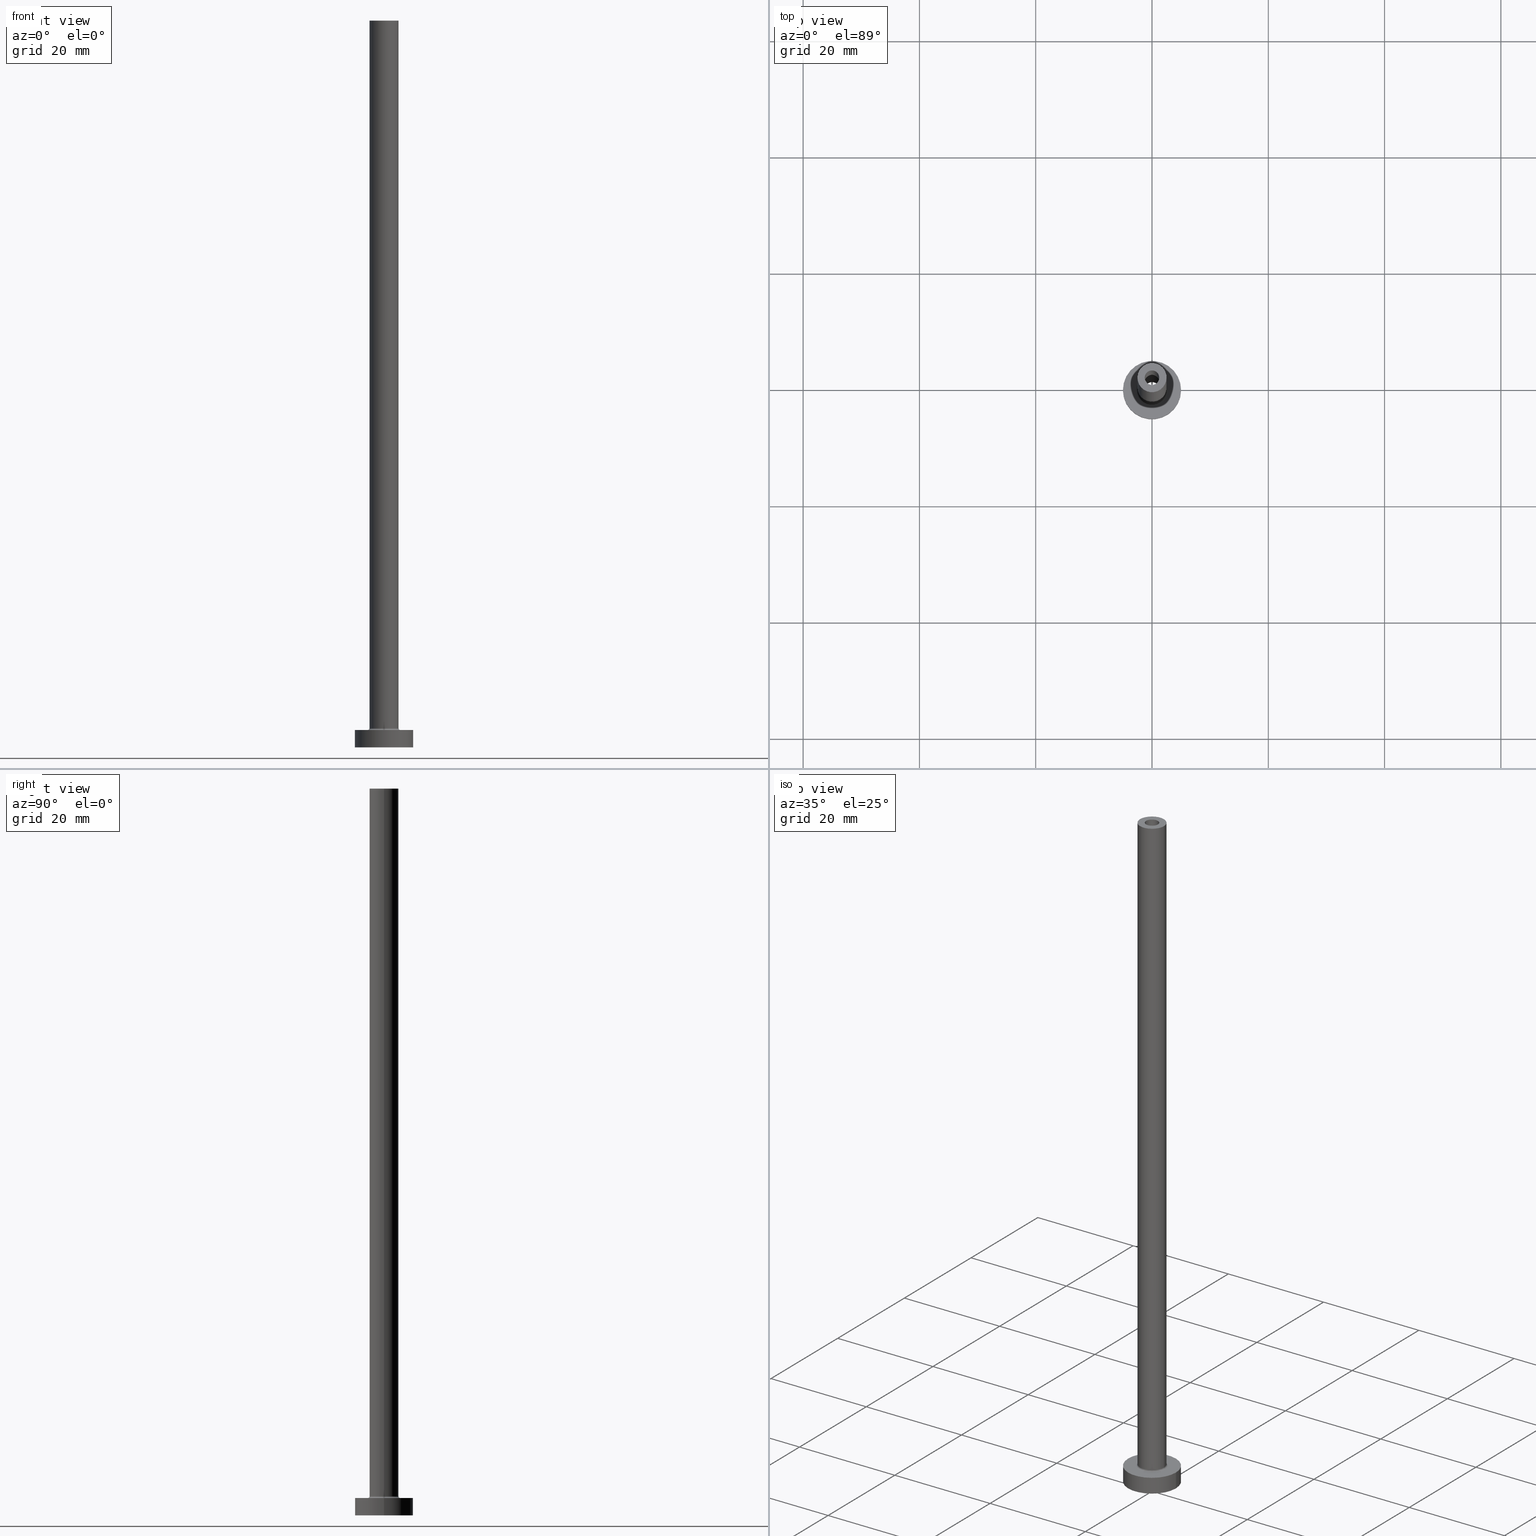
[diagram: canonical four-view strip — front | top / right | iso, engineering-drawing reading convention]
A machine part, canonical four-view strip (front | top / right | iso — engineering-drawing reading convention). The complete STEP part file that produces these views, byte-faithful:
ISO-10303-21;
HEADER;
FILE_DESCRIPTION (( 'STEP AP203' ),
    '1' );
FILE_NAME ('161c.STEP',
    '2023-02-13T12:48:53',
    ( '' ),
    ( '' ),
    'SwSTEP 2.0',
    'SolidWorks 2019',
    '' );
FILE_SCHEMA (( 'CONFIG_CONTROL_DESIGN' ));
ENDSEC;

DATA;
#1 = LINE ( 'NONE', #144, #115 ) ;
#2 = AXIS2_PLACEMENT_3D ( 'NONE', #163, #454, #384 ) ;
#3 = DIRECTION ( 'NONE',  ( -0.000000000000000000, -0.000000000000000000, -1.000000000000000000 ) ) ;
#4 = VERTEX_POINT ( 'NONE', #151 ) ;
#5 = FACE_OUTER_BOUND ( 'NONE', #342, .T. ) ;
#6 = EDGE_CURVE ( 'NONE', #406, #141, #446, .T. ) ;
#7 = EDGE_LOOP ( 'NONE', ( #230, #427 ) ) ;
#8 = DESIGN_CONTEXT ( 'detailed design', #412, 'design' ) ;
#9 = CARTESIAN_POINT ( 'NONE',  ( -1.250000000000000000, 0.000000000000000000, 125.0000000000000000 ) ) ;
#10 = VERTEX_POINT ( 'NONE', #332 ) ;
#11 = CARTESIAN_POINT ( 'NONE',  ( 0.000000000000000000, 0.000000000000000000, 93.95979797464465832 ) ) ;
#12 = PRODUCT_DEFINITION_FORMATION_WITH_SPECIFIED_SOURCE ( 'LIBOVOLN�', '', #228, .NOT_KNOWN. ) ;
#13 = EDGE_LOOP ( 'NONE', ( #50, #319, #366, #292 ) ) ;
#14 = AXIS2_PLACEMENT_3D ( 'NONE', #122, #261, #376 ) ;
#15 = DATE_TIME_ROLE ( 'creation_date' ) ;
#16 = ORIENTED_EDGE ( 'NONE', *, *, #36, .T. ) ;
#17 = ORIENTED_EDGE ( 'NONE', *, *, #123, .F. ) ;
#18 = APPROVAL_STATUS ( 'not_yet_approved' ) ;
#19 = CIRCLE ( 'NONE', #278, 2.799999999999999822 ) ;
#20 = ORIENTED_EDGE ( 'NONE', *, *, #334, .T. ) ;
#21 = DIRECTION ( 'NONE',  ( 1.000000000000000000, 0.000000000000000000, 0.000000000000000000 ) ) ;
#22 = EDGE_CURVE ( 'NONE', #268, #437, #196, .T. ) ;
#23 = PERSON_AND_ORGANIZATION ( #320, #240 ) ;
#24 = DIRECTION ( 'NONE',  ( 1.000000000000000000, 0.000000000000000000, 0.000000000000000000 ) ) ;
#25 = FACE_OUTER_BOUND ( 'NONE', #105, .T. ) ;
#26 = VECTOR ( 'NONE', #3, 1000.000000000000000 ) ;
#27 = EDGE_CURVE ( 'NONE', #378, #10, #158, .T. ) ;
#28 = AXIS2_PLACEMENT_3D ( 'NONE', #413, #92, #301 ) ;
#29 = CARTESIAN_POINT ( 'NONE',  ( -1.399999999999999911, 0.000000000000000000, 93.95979797464465832 ) ) ;
#30 = APPROVAL_ROLE ( '' ) ;
#31 = DIRECTION ( 'NONE',  ( 1.000000000000000000, 0.000000000000000000, 0.000000000000000000 ) ) ;
#32 = PLANE ( 'NONE',  #2 ) ;
#33 = AXIS2_PLACEMENT_3D ( 'NONE', #318, #243, #293 ) ;
#34 = DIRECTION ( 'NONE',  ( 1.224646799147353207E-16, 1.000000000000000000, -0.000000000000000000 ) ) ;
#35 = EDGE_LOOP ( 'NONE', ( #248, #209, #20, #83 ) ) ;
#36 = EDGE_CURVE ( 'NONE', #43, #326, #408, .T. ) ;
#37 = FACE_OUTER_BOUND ( 'NONE', #374, .T. ) ;
#38 = ORIENTED_EDGE ( 'NONE', *, *, #174, .F. ) ;
#39 = CARTESIAN_POINT ( 'NONE',  ( -1.250000000000000000, 0.000000000000000000, 125.0000000000000000 ) ) ;
#40 = ORIENTED_EDGE ( 'NONE', *, *, #361, .F. ) ;
#41 = EDGE_CURVE ( 'NONE', #139, #268, #224, .T. ) ;
#42 = DIRECTION ( 'NONE',  ( 1.000000000000000000, 0.000000000000000000, -0.000000000000000000 ) ) ;
#43 = VERTEX_POINT ( 'NONE', #160 ) ;
#44 = ADVANCED_BREP_SHAPE_REPRESENTATION ( '161c', ( #183, #295 ), #424 ) ;
#45 = CARTESIAN_POINT ( 'NONE',  ( 0.000000000000000000, 0.000000000000000000, 90.00000000000000000 ) ) ;
#46 = ORIENTED_EDGE ( 'NONE', *, *, #27, .F. ) ;
#47 = FACE_OUTER_BOUND ( 'NONE', #176, .T. ) ;
#48 = APPROVAL_DATE_TIME ( #56, #387 ) ;
#49 = LOCAL_TIME ( 13, 48, 53.00000000000000000, #124 ) ;
#50 = ORIENTED_EDGE ( 'NONE', *, *, #41, .F. ) ;
#51 = ADVANCED_FACE ( 'NONE', ( #308, #47 ), #127, .F. ) ;
#52 = APPLICATION_CONTEXT ( 'configuration controlled 3d designs of mechanical parts and assemblies' ) ;
#53 = VECTOR ( 'NONE', #200, 1000.000000000000000 ) ;
#54 = DIRECTION ( 'NONE',  ( 1.000000000000000000, 0.000000000000000000, 0.000000000000000000 ) ) ;
#55 = CARTESIAN_POINT ( 'NONE',  ( 0.000000000000000000, 0.000000000000000000, 125.0000000000000000 ) ) ;
#56 = DATE_AND_TIME ( #442, #49 ) ;
#57 = VERTEX_POINT ( 'NONE', #119 ) ;
#58 = ADVANCED_FACE ( 'NONE', ( #85 ), #255, .F. ) ;
#59 = DIRECTION ( 'NONE',  ( 0.000000000000000000, 0.000000000000000000, 1.000000000000000000 ) ) ;
#60 = AXIS2_PLACEMENT_3D ( 'NONE', #167, #242, #388 ) ;
#61 = ORIENTED_EDGE ( 'NONE', *, *, #289, .F. ) ;
#62 = SECURITY_CLASSIFICATION ( '', '', #417 ) ;
#63 = DIRECTION ( 'NONE',  ( 0.000000000000000000, 0.000000000000000000, 1.000000000000000000 ) ) ;
#64 = DIRECTION ( 'NONE',  ( 1.000000000000000000, 0.000000000000000000, 0.000000000000000000 ) ) ;
#65 = DIRECTION ( 'NONE',  ( 1.000000000000000000, 0.000000000000000000, 0.000000000000000000 ) ) ;
#66 = VECTOR ( 'NONE', #164, 1000.000000000000000 ) ;
#67 = LOCAL_TIME ( 13, 48, 53.00000000000000000, #341 ) ;
#68 = CARTESIAN_POINT ( 'NONE',  ( -5.000000000000000000, 0.000000000000000000, 3.000000000000000000 ) ) ;
#69 = DIRECTION ( 'NONE',  ( -0.000000000000000000, -0.000000000000000000, -1.000000000000000000 ) ) ;
#70 = CC_DESIGN_PERSON_AND_ORGANIZATION_ASSIGNMENT ( #165, #449, ( #12 ) ) ;
#71 = CARTESIAN_POINT ( 'NONE',  ( 0.000000000000000000, 0.000000000000000000, 125.0000000000000000 ) ) ;
#72 = VECTOR ( 'NONE', #460, 1000.000000000000000 ) ;
#73 = CARTESIAN_POINT ( 'NONE',  ( -5.000000000000000000, 0.000000000000000000, 3.000000000000000000 ) ) ;
#74 = CIRCLE ( 'NONE', #335, 1.399999999999999911 ) ;
#75 = ORIENTED_EDGE ( 'NONE', *, *, #27, .T. ) ;
#76 = DIRECTION ( 'NONE',  ( 1.000000000000000000, 0.000000000000000000, 0.000000000000000000 ) ) ;
#77 = EDGE_CURVE ( 'NONE', #250, #57, #386, .T. ) ;
#78 = CARTESIAN_POINT ( 'NONE',  ( 1.399999999999999911, 1.714505518806294145E-16, 0.000000000000000000 ) ) ;
#79 = ORIENTED_EDGE ( 'NONE', *, *, #383, .F. ) ;
#80 = APPROVAL_PERSON_ORGANIZATION ( #100, #198, #30 ) ;
#81 = FACE_OUTER_BOUND ( 'NONE', #35, .T. ) ;
#82 = ORIENTED_EDGE ( 'NONE', *, *, #204, .T. ) ;
#83 = ORIENTED_EDGE ( 'NONE', *, *, #289, .T. ) ;
#84 = PERSON_AND_ORGANIZATION_ROLE ( 'design_owner' ) ;
#85 = FACE_OUTER_BOUND ( 'NONE', #114, .T. ) ;
#86 = EDGE_LOOP ( 'NONE', ( #110, #394 ) ) ;
#87 = AXIS2_PLACEMENT_3D ( 'NONE', #149, #440, #303 ) ;
#88 = FACE_OUTER_BOUND ( 'NONE', #360, .T. ) ;
#89 = CARTESIAN_POINT ( 'NONE',  ( 0.000000000000000000, 0.000000000000000000, 3.299999999999997158 ) ) ;
#90 = CC_DESIGN_PERSON_AND_ORGANIZATION_ASSIGNMENT ( #443, #84, ( #228 ) ) ;
#91 = PERSON_AND_ORGANIZATION ( #320, #240 ) ;
#92 = DIRECTION ( 'NONE',  ( 0.000000000000000000, 0.000000000000000000, 1.000000000000000000 ) ) ;
#93 = EDGE_LOOP ( 'NONE', ( #173, #339, #284, #137 ) ) ;
#94 = FACE_OUTER_BOUND ( 'NONE', #93, .T. ) ;
#95 = PRODUCT_DEFINITION_SHAPE ( 'NONE', 'NONE',  #369 ) ;
#96 = DIRECTION ( 'NONE',  ( 0.000000000000000000, 0.000000000000000000, 1.000000000000000000 ) ) ;
#97 = COORDINATED_UNIVERSAL_TIME_OFFSET ( 1, 0, .AHEAD. ) ;
#98 = DIRECTION ( 'NONE',  ( -1.000000000000000000, 0.000000000000000000, 0.000000000000000000 ) ) ;
#99 = CIRCLE ( 'NONE', #214, 5.000000000000000000 ) ;
#100 = PERSON_AND_ORGANIZATION ( #320, #240 ) ;
#101 = FACE_BOUND ( 'NONE', #363, .T. ) ;
#102 = EDGE_CURVE ( 'NONE', #4, #290, #351, .T. ) ;
#103 = FACE_OUTER_BOUND ( 'NONE', #213, .T. ) ;
#104 = DIRECTION ( 'NONE',  ( 0.000000000000000000, 0.000000000000000000, 1.000000000000000000 ) ) ;
#105 = EDGE_LOOP ( 'NONE', ( #253, #225 ) ) ;
#106 = AXIS2_PLACEMENT_3D ( 'NONE', #459, #69, #276 ) ;
#107 = APPROVAL_PERSON_ORGANIZATION ( #409, #387, #371 ) ;
#108 = DIRECTION ( 'NONE',  ( -1.000000000000000000, 0.000000000000000000, 0.000000000000000000 ) ) ;
#109 = EDGE_CURVE ( 'NONE', #326, #43, #74, .T. ) ;
#110 = ORIENTED_EDGE ( 'NONE', *, *, #36, .F. ) ;
#111 = LINE ( 'NONE', #73, #26 ) ;
#112 = EDGE_LOOP ( 'NONE', ( #171, #432 ) ) ;
#113 = CARTESIAN_POINT ( 'NONE',  ( 0.000000000000000000, 0.000000000000000000, 3.299999999999997158 ) ) ;
#114 = EDGE_LOOP ( 'NONE', ( #305, #392, #145, #125 ) ) ;
#115 = VECTOR ( 'NONE', #249, 1000.000000000000000 ) ;
#116 = DIRECTION ( 'NONE',  ( -1.000000000000000000, 0.000000000000000000, 0.000000000000000000 ) ) ;
#117 = EDGE_LOOP ( 'NONE', ( #40, #82, #322, #219 ) ) ;
#118 = PRODUCT_RELATED_PRODUCT_CATEGORY ( 'detail', '', ( #228 ) ) ;
#119 = CARTESIAN_POINT ( 'NONE',  ( 5.000000000000000000, 6.123233995736766282E-16, 3.000000000000000000 ) ) ;
#120 = COORDINATED_UNIVERSAL_TIME_OFFSET ( 1, 0, .AHEAD. ) ;
#121 = DIRECTION ( 'NONE',  ( -0.000000000000000000, -0.000000000000000000, -1.000000000000000000 ) ) ;
#122 = CARTESIAN_POINT ( 'NONE',  ( 0.000000000000000000, 0.000000000000000000, 125.0000000000000000 ) ) ;
#123 = EDGE_CURVE ( 'NONE', #430, #326, #355, .T. ) ;
#124 = COORDINATED_UNIVERSAL_TIME_OFFSET ( 1, 0, .AHEAD. ) ;
#125 = ORIENTED_EDGE ( 'NONE', *, *, #435, .F. ) ;
#126 = PERSON_AND_ORGANIZATION_ROLE ( 'classification_officer' ) ;
#127 = PLANE ( 'NONE',  #28 ) ;
#128 = AXIS2_PLACEMENT_3D ( 'NONE', #190, #404, #159 ) ;
#129 = CARTESIAN_POINT ( 'NONE',  ( -1.399999999999999911, 0.000000000000000000, 90.00000000000000000 ) ) ;
#130 = DIRECTION ( 'NONE',  ( 0.000000000000000000, 0.000000000000000000, 1.000000000000000000 ) ) ;
#131 = CARTESIAN_POINT ( 'NONE',  ( -2.799999999999999822, 3.429011037612589276E-16, 2.999999999999998668 ) ) ;
#132 = PERSON_AND_ORGANIZATION ( #320, #240 ) ;
#133 = DIRECTION ( 'NONE',  ( 1.000000000000000000, 0.000000000000000000, 0.000000000000000000 ) ) ;
#134 = ADVANCED_FACE ( 'NONE', ( #311 ), #197, .T. ) ;
#135 = FACE_BOUND ( 'NONE', #7, .T. ) ;
#136 = CARTESIAN_POINT ( 'NONE',  ( 5.000000000000000000, 6.123233995736766282E-16, 3.000000000000000000 ) ) ;
#137 = ORIENTED_EDGE ( 'NONE', *, *, #231, .F. ) ;
#138 = CARTESIAN_POINT ( 'NONE',  ( 0.000000000000000000, 0.000000000000000000, 0.000000000000000000 ) ) ;
#139 = VERTEX_POINT ( 'NONE', #346 ) ;
#140 = DIRECTION ( 'NONE',  ( 0.000000000000000000, 0.000000000000000000, -1.000000000000000000 ) ) ;
#141 = VERTEX_POINT ( 'NONE', #131 ) ;
#142 = CARTESIAN_POINT ( 'NONE',  ( 2.799999999999999822, 0.000000000000000000, 2.999999999999998668 ) ) ;
#143 = EDGE_LOOP ( 'NONE', ( #434, #445, #402, #297 ) ) ;
#144 = CARTESIAN_POINT ( 'NONE',  ( 2.500000000000000000, 3.061616997868382648E-16, 125.0000000000000000 ) ) ;
#145 = ORIENTED_EDGE ( 'NONE', *, *, #267, .T. ) ;
#146 = CC_DESIGN_PERSON_AND_ORGANIZATION_ASSIGNMENT ( #132, #307, ( #12 ) ) ;
#147 = CIRCLE ( 'NONE', #310, 2.500000000000000000 ) ;
#148 = MECHANICAL_CONTEXT ( 'NONE', #52, 'mechanical' ) ;
#149 = CARTESIAN_POINT ( 'NONE',  ( 0.000000000000000000, 0.000000000000000000, 0.000000000000000000 ) ) ;
#150 = CYLINDRICAL_SURFACE ( 'NONE', #458, 1.399999999999999911 ) ;
#151 = CARTESIAN_POINT ( 'NONE',  ( 1.250000000000000000, 1.530808498934191571E-16, 90.00000000000000000 ) ) ;
#152 = ADVANCED_FACE ( 'NONE', ( #94 ), #161, .F. ) ;
#153 = DIRECTION ( 'NONE',  ( -1.000000000000000000, 0.000000000000000000, 0.000000000000000000 ) ) ;
#154 = CARTESIAN_POINT ( 'NONE',  ( -2.500000000000000000, 0.000000000000000000, 125.0000000000000000 ) ) ;
#155 = DIRECTION ( 'NONE',  ( 1.000000000000000000, 0.000000000000000000, 0.000000000000000000 ) ) ;
#156 = CC_DESIGN_APPROVAL ( #198, ( #62 ) ) ;
#157 = VERTEX_POINT ( 'NONE', #129 ) ;
#158 = CIRCLE ( 'NONE', #280, 1.250000000000000000 ) ;
#159 = DIRECTION ( 'NONE',  ( 1.000000000000000000, 0.000000000000000000, 0.000000000000000000 ) ) ;
#160 = CARTESIAN_POINT ( 'NONE',  ( -1.399999999999999911, 0.000000000000000000, 0.000000000000000000 ) ) ;
#161 = CYLINDRICAL_SURFACE ( 'NONE', #390, 1.399999999999999911 ) ;
#162 = CIRCLE ( 'NONE', #428, 1.250000000000000000 ) ;
#163 = CARTESIAN_POINT ( 'NONE',  ( 0.000000000000000000, 0.000000000000000000, 125.0000000000000000 ) ) ;
#164 = DIRECTION ( 'NONE',  ( 0.000000000000000000, 0.000000000000000000, -1.000000000000000000 ) ) ;
#165 = PERSON_AND_ORGANIZATION ( #320, #240 ) ;
#166 = EDGE_CURVE ( 'NONE', #461, #437, #244, .T. ) ;
#167 = CARTESIAN_POINT ( 'NONE',  ( 2.799999999999999822, 0.000000000000000000, 3.299999999999997158 ) ) ;
#168 = CARTESIAN_POINT ( 'NONE',  ( 0.000000000000000000, 0.000000000000000000, 3.000000000000000000 ) ) ;
#169 = AXIS2_PLACEMENT_3D ( 'NONE', #272, #348, #65 ) ;
#170 = CARTESIAN_POINT ( 'NONE',  ( 0.000000000000000000, 0.000000000000000000, 3.000000000000000000 ) ) ;
#171 = ORIENTED_EDGE ( 'NONE', *, *, #299, .T. ) ;
#172 = FACE_OUTER_BOUND ( 'NONE', #117, .T. ) ;
#173 = ORIENTED_EDGE ( 'NONE', *, *, #383, .T. ) ;
#174 = EDGE_CURVE ( 'NONE', #430, #157, #343, .T. ) ;
#175 = DIRECTION ( 'NONE',  ( 1.000000000000000000, 0.000000000000000000, 0.000000000000000000 ) ) ;
#176 = EDGE_LOOP ( 'NONE', ( #79, #38 ) ) ;
#177 = CIRCLE ( 'NONE', #325, 1.250000000000000000 ) ;
#178 = VECTOR ( 'NONE', #259, 1000.000000000000000 ) ;
#179 = DIRECTION ( 'NONE',  ( -1.000000000000000000, 0.000000000000000000, 0.000000000000000000 ) ) ;
#180 = DIRECTION ( 'NONE',  ( -1.000000000000000000, 0.000000000000000000, 0.000000000000000000 ) ) ;
#181 = ADVANCED_FACE ( 'NONE', ( #101, #25 ), #32, .T. ) ;
#182 = ORIENTED_EDGE ( 'NONE', *, *, #189, .T. ) ;
#183 = MANIFOLD_SOLID_BREP ( 'Odebrat vysunut�m4', #296 ) ;
#184 = ORIENTED_EDGE ( 'NONE', *, *, #6, .F. ) ;
#185 = LOCAL_TIME ( 13, 48, 53.00000000000000000, #380 ) ;
#186 = CALENDAR_DATE ( 2023, 13, 2 ) ;
#187 = ORIENTED_EDGE ( 'NONE', *, *, #422, .F. ) ;
#188 = AXIS2_PLACEMENT_3D ( 'NONE', #381, #63, #425 ) ;
#189 = EDGE_CURVE ( 'NONE', #57, #250, #222, .T. ) ;
#190 = CARTESIAN_POINT ( 'NONE',  ( 0.000000000000000000, 0.000000000000000000, 125.0000000000000000 ) ) ;
#191 = ORIENTED_EDGE ( 'NONE', *, *, #306, .T. ) ;
#192 = PERSON_AND_ORGANIZATION ( #320, #240 ) ;
#193 = CARTESIAN_POINT ( 'NONE',  ( 0.000000000000000000, 0.000000000000000000, 3.000000000000000000 ) ) ;
#194 = CIRCLE ( 'NONE', #128, 2.500000000000000000 ) ;
#195 = CARTESIAN_POINT ( 'NONE',  ( 2.500000000000000000, 3.061616997868382648E-16, 3.299999999999997158 ) ) ;
#196 = LINE ( 'NONE', #154, #178 ) ;
#197 = CYLINDRICAL_SURFACE ( 'NONE', #262, 5.000000000000000000 ) ;
#198 = APPROVAL ( #277, 'NEUR�EN�' ) ;
#199 = APPROVAL_DATE_TIME ( #314, #198 ) ;
#200 = DIRECTION ( 'NONE',  ( 0.000000000000000000, 0.000000000000000000, -1.000000000000000000 ) ) ;
#201 = VECTOR ( 'NONE', #429, 1000.000000000000000 ) ;
#202 = DIRECTION ( 'NONE',  ( -0.000000000000000000, -0.000000000000000000, -1.000000000000000000 ) ) ;
#203 = AXIS2_PLACEMENT_3D ( 'NONE', #264, #96, #64 ) ;
#204 = EDGE_CURVE ( 'NONE', #10, #378, #177, .T. ) ;
#205 = CARTESIAN_POINT ( 'NONE',  ( 0.000000000000000000, 0.000000000000000000, 3.299999999999997158 ) ) ;
#206 = CARTESIAN_POINT ( 'NONE',  ( -2.500000000000000000, 0.000000000000000000, 125.0000000000000000 ) ) ;
#207 = DIRECTION ( 'NONE',  ( 0.000000000000000000, 0.000000000000000000, 1.000000000000000000 ) ) ;
#208 = PLANE ( 'NONE',  #333 ) ;
#209 = ORIENTED_EDGE ( 'NONE', *, *, #77, .F. ) ;
#210 = CC_DESIGN_DATE_AND_TIME_ASSIGNMENT ( #352, #347, ( #62 ) ) ;
#211 = CARTESIAN_POINT ( 'NONE',  ( 1.250000000000000000, 1.530808498934191571E-16, 125.0000000000000000 ) ) ;
#212 = CARTESIAN_POINT ( 'NONE',  ( 0.000000000000000000, 0.000000000000000000, 125.0000000000000000 ) ) ;
#213 = EDGE_LOOP ( 'NONE', ( #257, #294, #184, #370 ) ) ;
#214 = AXIS2_PLACEMENT_3D ( 'NONE', #263, #59, #155 ) ;
#215 = CC_DESIGN_APPROVAL ( #387, ( #369 ) ) ;
#216 = CC_DESIGN_PERSON_AND_ORGANIZATION_ASSIGNMENT ( #192, #300, ( #369 ) ) ;
#217 = PLANE ( 'NONE',  #33 ) ;
#218 = DIRECTION ( 'NONE',  ( 0.000000000000000000, 0.000000000000000000, -1.000000000000000000 ) ) ;
#219 = ORIENTED_EDGE ( 'NONE', *, *, #102, .F. ) ;
#220 = APPLICATION_PROTOCOL_DEFINITION ( 'international standard', 'config_control_design', 1994, #412 ) ;
#221 = VERTEX_POINT ( 'NONE', #236 ) ;
#222 = CIRCLE ( 'NONE', #436, 5.000000000000000000 ) ;
#223 = CARTESIAN_POINT ( 'NONE',  ( 0.000000000000000000, 0.000000000000000000, 0.000000000000000000 ) ) ;
#224 = CIRCLE ( 'NONE', #14, 2.500000000000000000 ) ;
#225 = ORIENTED_EDGE ( 'NONE', *, *, #41, .T. ) ;
#226 = APPROVAL_STATUS ( 'not_yet_approved' ) ;
#227 = DIRECTION ( 'NONE',  ( 0.000000000000000000, 0.000000000000000000, 1.000000000000000000 ) ) ;
#228 = PRODUCT ( '161c', '161c', '', ( #148 ) ) ;
#229 = CARTESIAN_POINT ( 'NONE',  ( 1.399999999999999911, 1.714505518806294145E-16, 90.00000000000000000 ) ) ;
#230 = ORIENTED_EDGE ( 'NONE', *, *, #6, .T. ) ;
#231 = EDGE_CURVE ( 'NONE', #157, #43, #233, .T. ) ;
#232 = LOCAL_TIME ( 13, 48, 53.00000000000000000, #120 ) ;
#233 = LINE ( 'NONE', #29, #66 ) ;
#234 = CALENDAR_DATE ( 2023, 13, 2 ) ;
#235 = CARTESIAN_POINT ( 'NONE',  ( 1.399999999999999911, 1.714505518806294145E-16, 93.95979797464465832 ) ) ;
#236 = CARTESIAN_POINT ( 'NONE',  ( -5.000000000000000000, 0.000000000000000000, 0.000000000000000000 ) ) ;
#237 = ADVANCED_FACE ( 'NONE', ( #313 ), #456, .T. ) ;
#238 = SHAPE_DEFINITION_REPRESENTATION ( #95, #44 ) ;
#239 = AXIS2_PLACEMENT_3D ( 'NONE', #45, #431, #396 ) ;
#240 = ORGANIZATION ( 'NEUR�EN�', 'NEUR�EN�', '' ) ;
#241 = CARTESIAN_POINT ( 'NONE',  ( 0.000000000000000000, 0.000000000000000000, 125.0000000000000000 ) ) ;
#242 = DIRECTION ( 'NONE',  ( 0.000000000000000000, -1.000000000000000000, 0.000000000000000000 ) ) ;
#243 = DIRECTION ( 'NONE',  ( 0.000000000000000000, 0.000000000000000000, 1.000000000000000000 ) ) ;
#244 = CIRCLE ( 'NONE', #169, 2.500000000000000000 ) ;
#245 = LOCAL_TIME ( 13, 48, 53.00000000000000000, #97 ) ;
#246 = VERTEX_POINT ( 'NONE', #385 ) ;
#247 = LINE ( 'NONE', #211, #201 ) ;
#248 = ORIENTED_EDGE ( 'NONE', *, *, #306, .F. ) ;
#249 = DIRECTION ( 'NONE',  ( -0.000000000000000000, -0.000000000000000000, -1.000000000000000000 ) ) ;
#250 = VERTEX_POINT ( 'NONE', #68 ) ;
#251 = EDGE_CURVE ( 'NONE', #437, #461, #147, .T. ) ;
#252 = CARTESIAN_POINT ( 'NONE',  ( 0.000000000000000000, 0.000000000000000000, 90.00000000000000000 ) ) ;
#253 = ORIENTED_EDGE ( 'NONE', *, *, #455, .T. ) ;
#254 = CIRCLE ( 'NONE', #60, 0.2999999999999999334 ) ;
#255 = TOROIDAL_SURFACE ( 'NONE', #438, 2.799999999999999822, 0.2999999999999999889 ) ;
#256 = DIRECTION ( 'NONE',  ( 0.000000000000000000, 0.000000000000000000, 1.000000000000000000 ) ) ;
#257 = ORIENTED_EDGE ( 'NONE', *, *, #251, .F. ) ;
#258 =( NAMED_UNIT ( * ) PLANE_ANGLE_UNIT ( ) SI_UNIT ( $, .RADIAN. ) );
#259 = DIRECTION ( 'NONE',  ( -0.000000000000000000, -0.000000000000000000, -1.000000000000000000 ) ) ;
#260 = DIRECTION ( 'NONE',  ( 0.000000000000000000, 0.000000000000000000, -1.000000000000000000 ) ) ;
#261 = DIRECTION ( 'NONE',  ( 0.000000000000000000, 0.000000000000000000, 1.000000000000000000 ) ) ;
#262 = AXIS2_PLACEMENT_3D ( 'NONE', #168, #275, #421 ) ;
#263 = CARTESIAN_POINT ( 'NONE',  ( 0.000000000000000000, 0.000000000000000000, 0.000000000000000000 ) ) ;
#264 = CARTESIAN_POINT ( 'NONE',  ( 0.000000000000000000, 0.000000000000000000, 3.000000000000000000 ) ) ;
#265 = CALENDAR_DATE ( 2023, 13, 2 ) ;
#266 = ORIENTED_EDGE ( 'NONE', *, *, #231, .T. ) ;
#267 = EDGE_CURVE ( 'NONE', #461, #406, #254, .T. ) ;
#268 = VERTEX_POINT ( 'NONE', #206 ) ;
#269 = AXIS2_PLACEMENT_3D ( 'NONE', #138, #288, #175 ) ;
#270 = APPROVAL_DATE_TIME ( #420, #282 ) ;
#271 = APPROVAL_PERSON_ORGANIZATION ( #91, #282, #447 ) ;
#272 = CARTESIAN_POINT ( 'NONE',  ( 0.000000000000000000, 0.000000000000000000, 3.299999999999997158 ) ) ;
#273 = CALENDAR_DATE ( 2023, 13, 2 ) ;
#274 = ADVANCED_FACE ( 'NONE', ( #135, #281 ), #217, .T. ) ;
#275 = DIRECTION ( 'NONE',  ( -0.000000000000000000, -0.000000000000000000, -1.000000000000000000 ) ) ;
#276 = DIRECTION ( 'NONE',  ( -1.000000000000000000, 0.000000000000000000, 0.000000000000000000 ) ) ;
#277 = APPROVAL_STATUS ( 'not_yet_approved' ) ;
#278 = AXIS2_PLACEMENT_3D ( 'NONE', #377, #302, #54 ) ;
#279 = DIRECTION ( 'NONE',  ( 1.000000000000000000, 0.000000000000000000, 0.000000000000000000 ) ) ;
#280 = AXIS2_PLACEMENT_3D ( 'NONE', #55, #450, #21 ) ;
#281 = FACE_OUTER_BOUND ( 'NONE', #330, .T. ) ;
#282 = APPROVAL ( #18, 'NEUR�EN�' ) ;
#283 = DIRECTION ( 'NONE',  ( -0.000000000000000000, -0.000000000000000000, -1.000000000000000000 ) ) ;
#284 = ORIENTED_EDGE ( 'NONE', *, *, #109, .T. ) ;
#285 = DIRECTION ( 'NONE',  ( 0.000000000000000000, 0.000000000000000000, 1.000000000000000000 ) ) ;
#286 = VECTOR ( 'NONE', #140, 1000.000000000000000 ) ;
#287 = ORIENTED_EDGE ( 'NONE', *, *, #375, .F. ) ;
#288 = DIRECTION ( 'NONE',  ( 0.000000000000000000, 0.000000000000000000, 1.000000000000000000 ) ) ;
#289 = EDGE_CURVE ( 'NONE', #221, #246, #415, .T. ) ;
#290 = VERTEX_POINT ( 'NONE', #391 ) ;
#291 = CYLINDRICAL_SURFACE ( 'NONE', #423, 1.250000000000000000 ) ;
#292 = ORIENTED_EDGE ( 'NONE', *, *, #22, .F. ) ;
#293 = DIRECTION ( 'NONE',  ( 1.000000000000000000, 0.000000000000000000, -0.000000000000000000 ) ) ;
#294 = ORIENTED_EDGE ( 'NONE', *, *, #401, .T. ) ;
#295 = AXIS2_PLACEMENT_3D ( 'NONE', #223, #256, #411 ) ;
#296 = CLOSED_SHELL ( 'NONE', ( #416, #152, #312, #323, #134, #407, #274, #354, #237, #181, #58, #441, #51, #395 ) ) ;
#297 = ORIENTED_EDGE ( 'NONE', *, *, #251, .T. ) ;
#298 = UNCERTAINTY_MEASURE_WITH_UNIT (LENGTH_MEASURE( 1.000000000000000082E-05 ), #338, 'distance_accuracy_value', 'NONE');
#299 = EDGE_CURVE ( 'NONE', #290, #4, #162, .T. ) ;
#300 = PERSON_AND_ORGANIZATION_ROLE ( 'creator' ) ;
#301 = DIRECTION ( 'NONE',  ( 1.000000000000000000, 0.000000000000000000, -0.000000000000000000 ) ) ;
#302 = DIRECTION ( 'NONE',  ( -0.000000000000000000, -0.000000000000000000, -1.000000000000000000 ) ) ;
#303 = DIRECTION ( 'NONE',  ( 1.000000000000000000, 0.000000000000000000, 0.000000000000000000 ) ) ;
#304 = AXIS2_PLACEMENT_3D ( 'NONE', #170, #327, #180 ) ;
#305 = ORIENTED_EDGE ( 'NONE', *, *, #401, .F. ) ;
#306 = EDGE_CURVE ( 'NONE', #57, #246, #321, .T. ) ;
#307 = PERSON_AND_ORGANIZATION_ROLE ( 'creator' ) ;
#308 = FACE_BOUND ( 'NONE', #112, .T. ) ;
#309 = CARTESIAN_POINT ( 'NONE',  ( 0.000000000000000000, 0.000000000000000000, 93.95979797464465832 ) ) ;
#310 = AXIS2_PLACEMENT_3D ( 'NONE', #205, #353, #31 ) ;
#311 = FACE_OUTER_BOUND ( 'NONE', #400, .T. ) ;
#312 = ADVANCED_FACE ( 'NONE', ( #103 ), #379, .F. ) ;
#313 = FACE_OUTER_BOUND ( 'NONE', #143, .T. ) ;
#314 = DATE_AND_TIME ( #234, #245 ) ;
#315 = CARTESIAN_POINT ( 'NONE',  ( 0.000000000000000000, 0.000000000000000000, 0.000000000000000000 ) ) ;
#316 = DIRECTION ( 'NONE',  ( 0.000000000000000000, 0.000000000000000000, 1.000000000000000000 ) ) ;
#317 = CC_DESIGN_DATE_AND_TIME_ASSIGNMENT ( #336, #15, ( #369 ) ) ;
#318 = CARTESIAN_POINT ( 'NONE',  ( 0.000000000000000000, 0.000000000000000000, 3.000000000000000000 ) ) ;
#319 = ORIENTED_EDGE ( 'NONE', *, *, #340, .T. ) ;
#320 = PERSON ( 'NEUR�EN�', 'NEUR�EN�', 'NEUR�EN�', ('NEUR�EN�'), ('NEUR�EN�'), ('NEUR�EN�') ) ;
#321 = LINE ( 'NONE', #136, #72 ) ;
#322 = ORIENTED_EDGE ( 'NONE', *, *, #375, .T. ) ;
#323 = ADVANCED_FACE ( 'NONE', ( #324 ), #357, .T. ) ;
#324 = FACE_OUTER_BOUND ( 'NONE', #13, .T. ) ;
#325 = AXIS2_PLACEMENT_3D ( 'NONE', #241, #316, #133 ) ;
#326 = VERTEX_POINT ( 'NONE', #78 ) ;
#327 = DIRECTION ( 'NONE',  ( -0.000000000000000000, -0.000000000000000000, -1.000000000000000000 ) ) ;
#328 = ORIENTED_EDGE ( 'NONE', *, *, #422, .T. ) ;
#329 = CARTESIAN_POINT ( 'NONE',  ( 0.000000000000000000, 0.000000000000000000, 125.0000000000000000 ) ) ;
#330 = EDGE_LOOP ( 'NONE', ( #373, #182 ) ) ;
#331 = APPLICATION_PROTOCOL_DEFINITION ( 'international standard', 'config_control_design', 1994, #52 ) ;
#332 = CARTESIAN_POINT ( 'NONE',  ( 1.250000000000000000, 1.530808498934191571E-16, 125.0000000000000000 ) ) ;
#333 = AXIS2_PLACEMENT_3D ( 'NONE', #393, #207, #42 ) ;
#334 = EDGE_CURVE ( 'NONE', #250, #221, #111, .T. ) ;
#335 = AXIS2_PLACEMENT_3D ( 'NONE', #315, #202, #24 ) ;
#336 = DATE_AND_TIME ( #186, #67 ) ;
#337 = ORIENTED_EDGE ( 'NONE', *, *, #174, .T. ) ;
#338 =( LENGTH_UNIT ( ) NAMED_UNIT ( * ) SI_UNIT ( .MILLI., .METRE. ) );
#339 = ORIENTED_EDGE ( 'NONE', *, *, #123, .T. ) ;
#340 = EDGE_CURVE ( 'NONE', #139, #461, #1, .T. ) ;
#341 = COORDINATED_UNIVERSAL_TIME_OFFSET ( 1, 0, .AHEAD. ) ;
#342 = EDGE_LOOP ( 'NONE', ( #75, #397, #345, #287 ) ) ;
#343 = CIRCLE ( 'NONE', #372, 1.399999999999999911 ) ;
#344 = CC_DESIGN_SECURITY_CLASSIFICATION ( #62, ( #12 ) ) ;
#345 = ORIENTED_EDGE ( 'NONE', *, *, #299, .F. ) ;
#346 = CARTESIAN_POINT ( 'NONE',  ( 2.500000000000000000, 3.061616997868382648E-16, 125.0000000000000000 ) ) ;
#347 = DATE_TIME_ROLE ( 'classification_date' ) ;
#348 = DIRECTION ( 'NONE',  ( 0.000000000000000000, 0.000000000000000000, 1.000000000000000000 ) ) ;
#349 = CIRCLE ( 'NONE', #239, 1.399999999999999911 ) ;
#350 = CARTESIAN_POINT ( 'NONE',  ( 0.000000000000000000, 0.000000000000000000, 3.000000000000000000 ) ) ;
#351 = CIRCLE ( 'NONE', #188, 1.250000000000000000 ) ;
#352 = DATE_AND_TIME ( #273, #185 ) ;
#353 = DIRECTION ( 'NONE',  ( 0.000000000000000000, 0.000000000000000000, 1.000000000000000000 ) ) ;
#354 = ADVANCED_FACE ( 'NONE', ( #389, #37 ), #208, .F. ) ;
#355 = LINE ( 'NONE', #235, #53 ) ;
#356 = CIRCLE ( 'NONE', #399, 0.2999999999999999334 ) ;
#357 = CYLINDRICAL_SURFACE ( 'NONE', #365, 2.500000000000000000 ) ;
#358 = AXIS2_PLACEMENT_3D ( 'NONE', #193, #121, #448 ) ;
#359 = CYLINDRICAL_SURFACE ( 'NONE', #304, 5.000000000000000000 ) ;
#360 = EDGE_LOOP ( 'NONE', ( #17, #337, #266, #16 ) ) ;
#361 = EDGE_CURVE ( 'NONE', #10, #4, #247, .T. ) ;
#362 = LINE ( 'NONE', #39, #286 ) ;
#363 = EDGE_LOOP ( 'NONE', ( #46, #403 ) ) ;
#364 = CYLINDRICAL_SURFACE ( 'NONE', #405, 1.250000000000000000 ) ;
#365 = AXIS2_PLACEMENT_3D ( 'NONE', #212, #283, #108 ) ;
#366 = ORIENTED_EDGE ( 'NONE', *, *, #166, .T. ) ;
#367 = DIRECTION ( 'NONE',  ( 1.000000000000000000, 0.000000000000000000, 0.000000000000000000 ) ) ;
#368 = CARTESIAN_POINT ( 'NONE',  ( -2.500000000000000000, 0.000000000000000000, 3.299999999999997158 ) ) ;
#369 = PRODUCT_DEFINITION ( 'NEZN�M�', '', #12, #8 ) ;
#370 = ORIENTED_EDGE ( 'NONE', *, *, #267, .F. ) ;
#371 = APPROVAL_ROLE ( '' ) ;
#372 = AXIS2_PLACEMENT_3D ( 'NONE', #418, #382, #457 ) ;
#373 = ORIENTED_EDGE ( 'NONE', *, *, #77, .T. ) ;
#374 = EDGE_LOOP ( 'NONE', ( #61, #187 ) ) ;
#375 = EDGE_CURVE ( 'NONE', #378, #290, #362, .T. ) ;
#376 = DIRECTION ( 'NONE',  ( 1.000000000000000000, 0.000000000000000000, 0.000000000000000000 ) ) ;
#377 = CARTESIAN_POINT ( 'NONE',  ( 0.000000000000000000, 0.000000000000000000, 3.000000000000000000 ) ) ;
#378 = VERTEX_POINT ( 'NONE', #9 ) ;
#379 = TOROIDAL_SURFACE ( 'NONE', #444, 2.799999999999999822, 0.2999999999999999889 ) ;
#380 = COORDINATED_UNIVERSAL_TIME_OFFSET ( 1, 0, .AHEAD. ) ;
#381 = CARTESIAN_POINT ( 'NONE',  ( 0.000000000000000000, 0.000000000000000000, 90.00000000000000000 ) ) ;
#382 = DIRECTION ( 'NONE',  ( 0.000000000000000000, 0.000000000000000000, 1.000000000000000000 ) ) ;
#383 = EDGE_CURVE ( 'NONE', #157, #430, #349, .T. ) ;
#384 = DIRECTION ( 'NONE',  ( 1.000000000000000000, 0.000000000000000000, -0.000000000000000000 ) ) ;
#385 = CARTESIAN_POINT ( 'NONE',  ( 5.000000000000000000, 6.123233995736766282E-16, 0.000000000000000000 ) ) ;
#386 = CIRCLE ( 'NONE', #203, 5.000000000000000000 ) ;
#387 = APPROVAL ( #226, 'NEUR�EN�' ) ;
#388 = DIRECTION ( 'NONE',  ( 0.000000000000000000, 0.000000000000000000, -1.000000000000000000 ) ) ;
#389 = FACE_BOUND ( 'NONE', #86, .T. ) ;
#390 = AXIS2_PLACEMENT_3D ( 'NONE', #309, #452, #98 ) ;
#391 = CARTESIAN_POINT ( 'NONE',  ( -1.250000000000000000, 0.000000000000000000, 90.00000000000000000 ) ) ;
#392 = ORIENTED_EDGE ( 'NONE', *, *, #166, .F. ) ;
#393 = CARTESIAN_POINT ( 'NONE',  ( 0.000000000000000000, 0.000000000000000000, 0.000000000000000000 ) ) ;
#394 = ORIENTED_EDGE ( 'NONE', *, *, #109, .F. ) ;
#395 = ADVANCED_FACE ( 'NONE', ( #172 ), #364, .F. ) ;
#396 = DIRECTION ( 'NONE',  ( 1.000000000000000000, 0.000000000000000000, 0.000000000000000000 ) ) ;
#397 = ORIENTED_EDGE ( 'NONE', *, *, #361, .T. ) ;
#398 = DIRECTION ( 'NONE',  ( 0.000000000000000000, 0.000000000000000000, -1.000000000000000000 ) ) ;
#399 = AXIS2_PLACEMENT_3D ( 'NONE', #433, #34, #426 ) ;
#400 = EDGE_LOOP ( 'NONE', ( #410, #191, #328, #414 ) ) ;
#401 = EDGE_CURVE ( 'NONE', #437, #141, #356, .T. ) ;
#402 = ORIENTED_EDGE ( 'NONE', *, *, #22, .T. ) ;
#403 = ORIENTED_EDGE ( 'NONE', *, *, #204, .F. ) ;
#404 = DIRECTION ( 'NONE',  ( 0.000000000000000000, 0.000000000000000000, 1.000000000000000000 ) ) ;
#405 = AXIS2_PLACEMENT_3D ( 'NONE', #71, #398, #179 ) ;
#406 = VERTEX_POINT ( 'NONE', #142 ) ;
#407 = ADVANCED_FACE ( 'NONE', ( #81 ), #359, .T. ) ;
#408 = CIRCLE ( 'NONE', #87, 1.399999999999999911 ) ;
#409 = PERSON_AND_ORGANIZATION ( #320, #240 ) ;
#410 = ORIENTED_EDGE ( 'NONE', *, *, #189, .F. ) ;
#411 = DIRECTION ( 'NONE',  ( 1.000000000000000000, 0.000000000000000000, 0.000000000000000000 ) ) ;
#412 = APPLICATION_CONTEXT ( 'configuration controlled 3d designs of mechanical parts and assemblies' ) ;
#413 = CARTESIAN_POINT ( 'NONE',  ( 0.000000000000000000, 0.000000000000000000, 90.00000000000000000 ) ) ;
#414 = ORIENTED_EDGE ( 'NONE', *, *, #334, .F. ) ;
#415 = CIRCLE ( 'NONE', #269, 5.000000000000000000 ) ;
#416 = ADVANCED_FACE ( 'NONE', ( #5 ), #291, .F. ) ;
#417 = SECURITY_CLASSIFICATION_LEVEL ( 'unclassified' ) ;
#418 = CARTESIAN_POINT ( 'NONE',  ( 0.000000000000000000, 0.000000000000000000, 90.00000000000000000 ) ) ;
#419 = DIRECTION ( 'NONE',  ( 1.000000000000000000, 0.000000000000000000, 0.000000000000000000 ) ) ;
#420 = DATE_AND_TIME ( #265, #232 ) ;
#421 = DIRECTION ( 'NONE',  ( -1.000000000000000000, 0.000000000000000000, 0.000000000000000000 ) ) ;
#422 = EDGE_CURVE ( 'NONE', #246, #221, #99, .T. ) ;
#423 = AXIS2_PLACEMENT_3D ( 'NONE', #329, #218, #153 ) ;
#424 =( GEOMETRIC_REPRESENTATION_CONTEXT ( 3 ) GLOBAL_UNCERTAINTY_ASSIGNED_CONTEXT ( ( #298 ) ) GLOBAL_UNIT_ASSIGNED_CONTEXT ( ( #338, #258, #439 ) ) REPRESENTATION_CONTEXT ( 'NONE', 'WORKASPACE' ) );
#425 = DIRECTION ( 'NONE',  ( 1.000000000000000000, 0.000000000000000000, 0.000000000000000000 ) ) ;
#426 = DIRECTION ( 'NONE',  ( -1.000000000000000000, 1.224646799147353207E-16, 0.000000000000000000 ) ) ;
#427 = ORIENTED_EDGE ( 'NONE', *, *, #435, .T. ) ;
#428 = AXIS2_PLACEMENT_3D ( 'NONE', #252, #104, #76 ) ;
#429 = DIRECTION ( 'NONE',  ( 0.000000000000000000, 0.000000000000000000, -1.000000000000000000 ) ) ;
#430 = VERTEX_POINT ( 'NONE', #229 ) ;
#431 = DIRECTION ( 'NONE',  ( 0.000000000000000000, 0.000000000000000000, 1.000000000000000000 ) ) ;
#432 = ORIENTED_EDGE ( 'NONE', *, *, #102, .T. ) ;
#433 = CARTESIAN_POINT ( 'NONE',  ( -2.799999999999999822, 3.429011037612588783E-16, 3.299999999999997158 ) ) ;
#434 = ORIENTED_EDGE ( 'NONE', *, *, #340, .F. ) ;
#435 = EDGE_CURVE ( 'NONE', #141, #406, #19, .T. ) ;
#436 = AXIS2_PLACEMENT_3D ( 'NONE', #350, #130, #419 ) ;
#437 = VERTEX_POINT ( 'NONE', #368 ) ;
#438 = AXIS2_PLACEMENT_3D ( 'NONE', #89, #227, #279 ) ;
#439 =( NAMED_UNIT ( * ) SI_UNIT ( $, .STERADIAN. ) SOLID_ANGLE_UNIT ( ) );
#440 = DIRECTION ( 'NONE',  ( -0.000000000000000000, -0.000000000000000000, -1.000000000000000000 ) ) ;
#441 = ADVANCED_FACE ( 'NONE', ( #88 ), #150, .F. ) ;
#442 = CALENDAR_DATE ( 2023, 13, 2 ) ;
#443 = PERSON_AND_ORGANIZATION ( #320, #240 ) ;
#444 = AXIS2_PLACEMENT_3D ( 'NONE', #113, #285, #367 ) ;
#445 = ORIENTED_EDGE ( 'NONE', *, *, #455, .F. ) ;
#446 = CIRCLE ( 'NONE', #358, 2.799999999999999822 ) ;
#447 = APPROVAL_ROLE ( '' ) ;
#448 = DIRECTION ( 'NONE',  ( 1.000000000000000000, 0.000000000000000000, 0.000000000000000000 ) ) ;
#449 = PERSON_AND_ORGANIZATION_ROLE ( 'design_supplier' ) ;
#450 = DIRECTION ( 'NONE',  ( 0.000000000000000000, 0.000000000000000000, 1.000000000000000000 ) ) ;
#451 = CC_DESIGN_PERSON_AND_ORGANIZATION_ASSIGNMENT ( #23, #126, ( #62 ) ) ;
#452 = DIRECTION ( 'NONE',  ( 0.000000000000000000, 0.000000000000000000, -1.000000000000000000 ) ) ;
#453 = CC_DESIGN_APPROVAL ( #282, ( #12 ) ) ;
#454 = DIRECTION ( 'NONE',  ( 0.000000000000000000, 0.000000000000000000, 1.000000000000000000 ) ) ;
#455 = EDGE_CURVE ( 'NONE', #268, #139, #194, .T. ) ;
#456 = CYLINDRICAL_SURFACE ( 'NONE', #106, 2.500000000000000000 ) ;
#457 = DIRECTION ( 'NONE',  ( 1.000000000000000000, 0.000000000000000000, 0.000000000000000000 ) ) ;
#458 = AXIS2_PLACEMENT_3D ( 'NONE', #11, #260, #116 ) ;
#459 = CARTESIAN_POINT ( 'NONE',  ( 0.000000000000000000, 0.000000000000000000, 125.0000000000000000 ) ) ;
#460 = DIRECTION ( 'NONE',  ( -0.000000000000000000, -0.000000000000000000, -1.000000000000000000 ) ) ;
#461 = VERTEX_POINT ( 'NONE', #195 ) ;
ENDSEC;
END-ISO-10303-21;
